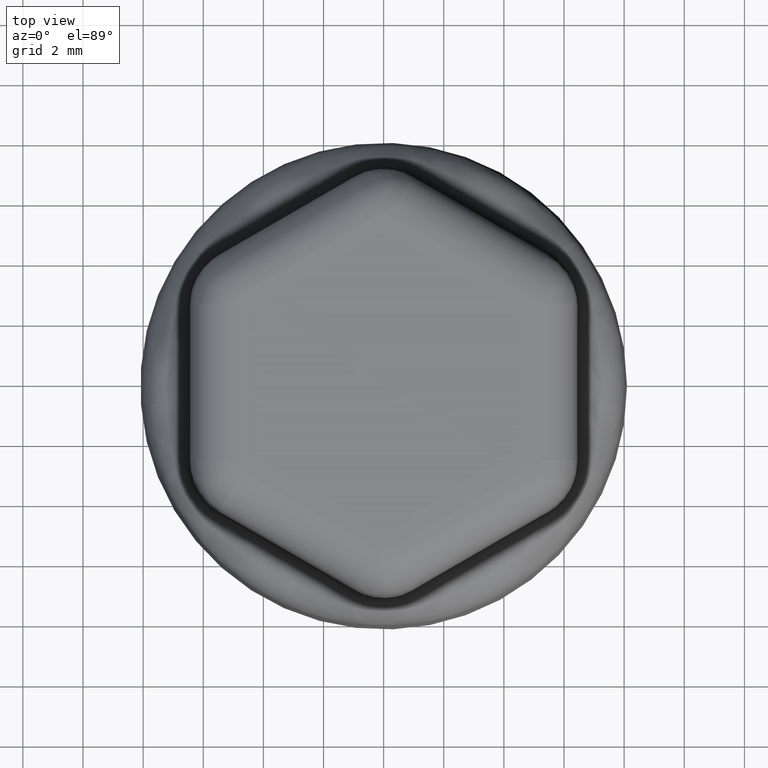
[diagram: clean part render]
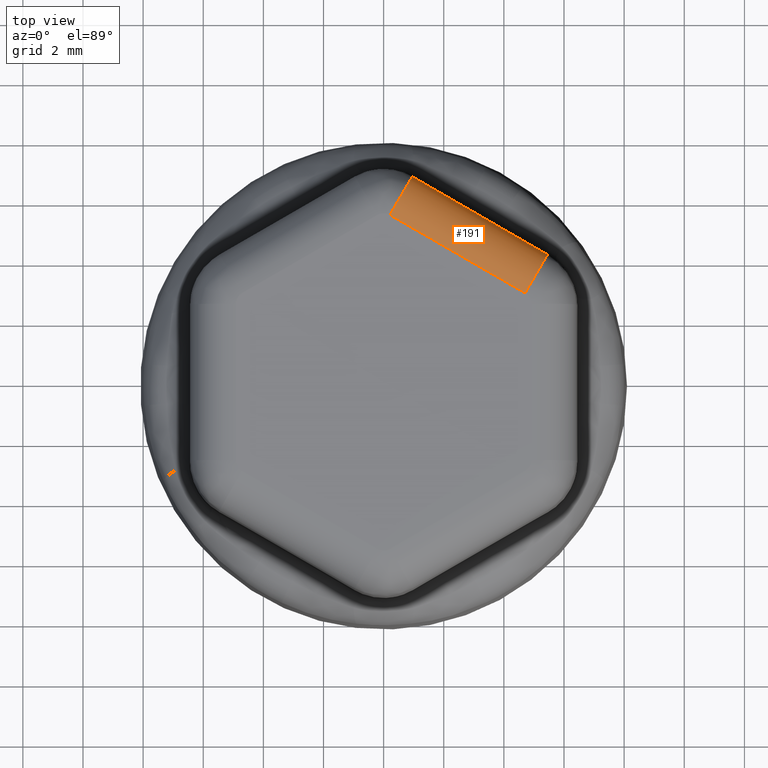
[diagram: same view with one face highlighted and labeled with its STEP entity id]
A machine part, top view. The second image highlights one B-rep face of the part: STEP entity #191.
In plain terms, the highlighted cylindrical surface (partial cylindrical patch) has radius 1.5 mm, axis along (-0.866, 0.5, 0).
Its self-contained STEP definition (entity closure, byte-faithful):
#191 = ADVANCED_FACE( '', ( #442 ), #443, .T. );
#442 = FACE_OUTER_BOUND( '', #5033, .T. );
#443 = CYLINDRICAL_SURFACE( '', #5034, 1.50000000000000 );
#5033 = EDGE_LOOP( '', ( #6244, #6245, #6246, #6247 ) );
#5034 = AXIS2_PLACEMENT_3D( '', #6248, #6249, #6250 );
#6244 = ORIENTED_EDGE( '', *, *, #6607, .T. );
#6245 = ORIENTED_EDGE( '', *, *, #6550, .F. );
#6246 = ORIENTED_EDGE( '', *, *, #6611, .F. );
#6247 = ORIENTED_EDGE( '', *, *, #6450, .F. );
#6248 = CARTESIAN_POINT( '', ( -1.29373287024802, 6.41939900853167, 6.80000000000005 ) );
#6249 = DIRECTION( '', ( -0.866025403784439, 0.500000000000000, 6.16969328604336E-030 ) );
#6250 = DIRECTION( '', ( 0.500000000000000, 0.866025403784439, 0.000000000000000 ) );
#6450 = EDGE_CURVE( '', #6845, #6847, #6848, .F. );
#6550 = EDGE_CURVE( '', #6968, #7010, #7016, .T. );
#6607 = EDGE_CURVE( '', #6845, #7010, #7093, .T. );
#6611 = EDGE_CURVE( '', #6847, #6968, #7097, .T. );
#6845 = VERTEX_POINT( '', #7985 );
#6847 = VERTEX_POINT( '', #8008 );
#6848 = LINE( '', #8009, #8010 );
#6968 = VERTEX_POINT( '', #8668 );
#7010 = VERTEX_POINT( '', #8877 );
#7016 = LINE( '', #8899, #8900 );
#7093 = CIRCLE( '', #9295, 1.50000000000000 );
#7097 = CIRCLE( '', #9299, 1.50000000000000 );
#7985 = CARTESIAN_POINT( '', ( 4.70628616785743, 2.95528640173860, 8.30000000000005 ) );
#8008 = CARTESIAN_POINT( '', ( 0.206210031174337, 5.55340657062639, 8.30000000000005 ) );
#8009 = CARTESIAN_POINT( '', ( -0.659783202329348, 6.05338799710614, 8.30000000000005 ) );
#8010 = VECTOR( '', #9581, 1000.00000000000 );
#8668 = CARTESIAN_POINT( '', ( 0.956095787654039, 6.85224683510289, 6.82617860965598 ) );
#8877 = CARTESIAN_POINT( '', ( 5.45617193922472, 4.25412665761974, 6.82617860965598 ) );
#8899 = CARTESIAN_POINT( '', ( -0.543847098880731, 7.71823926441280, 6.82617860965598 ) );
#8900 = VECTOR( '', #9707, 1000.00000000000 );
#9295 = AXIS2_PLACEMENT_3D( '', #9785, #9786, #9787 );
#9299 = AXIS2_PLACEMENT_3D( '', #9797, #9798, #9799 );
#9581 = DIRECTION( '', ( 0.866025403784439, -0.500000000000000, -5.91645678915759E-030 ) );
#9707 = DIRECTION( '', ( 0.866025403784439, -0.500000000000000, -7.65656096099671E-019 ) );
#9785 = CARTESIAN_POINT( '', ( 4.70628616785743, 2.95528640173860, 6.80000000000005 ) );
#9786 = DIRECTION( '', ( -0.866025403784447, 0.499999999999985, 2.07579236566496E-017 ) );
#9787 = DIRECTION( '', ( -0.499999999999985, -0.866025403784447, 0.000000000000000 ) );
#9797 = CARTESIAN_POINT( '', ( 0.206210031174340, 5.55340657062640, 6.80000000000005 ) );
#9798 = DIRECTION( '', ( -0.866025409515550, 0.499999990073424, -2.61894613000316E-017 ) );
#9799 = DIRECTION( '', ( -0.499999990073424, -0.866025409515550, 0.000000000000000 ) );